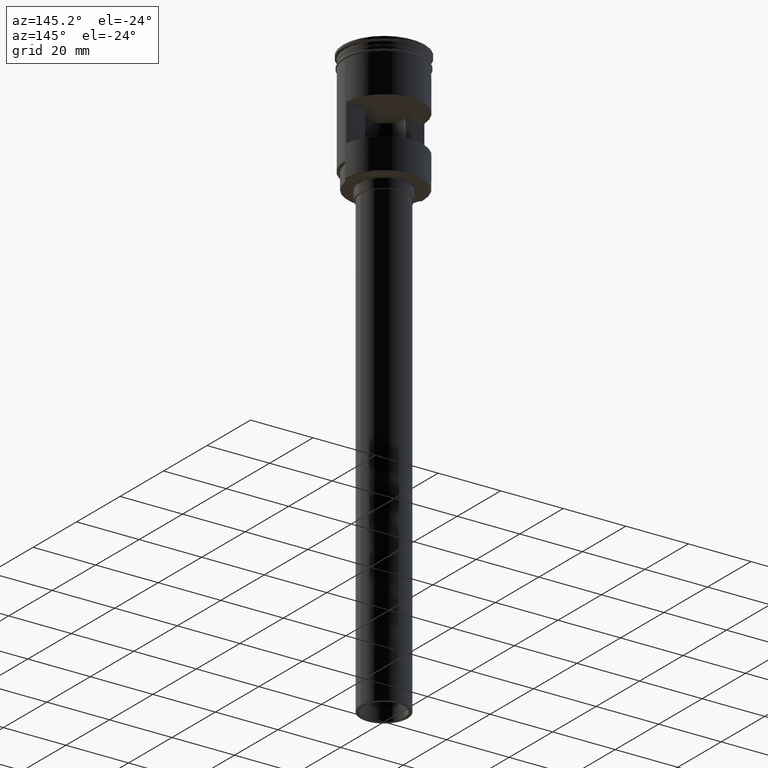
[diagram: clean part render]
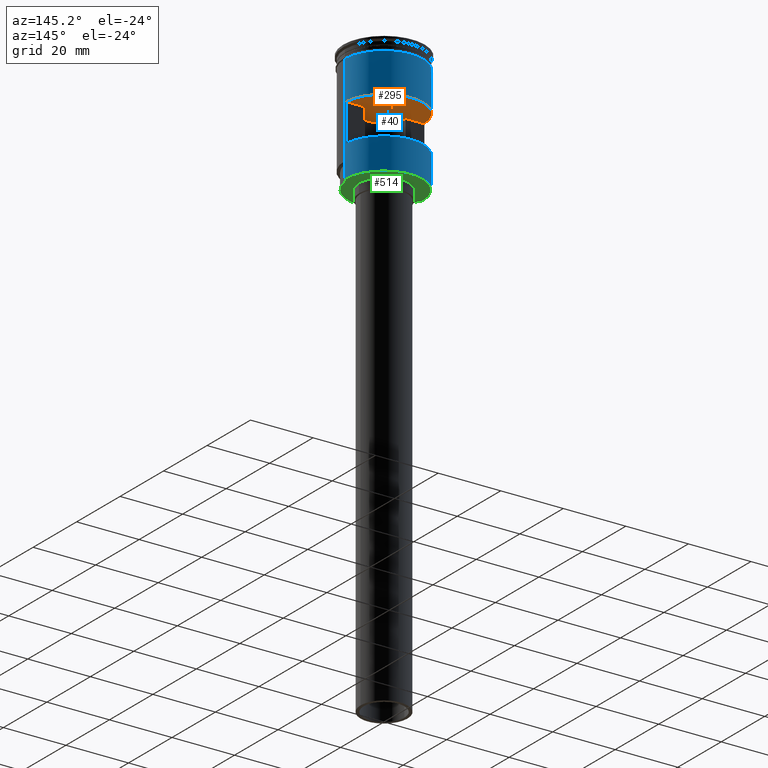
[diagram: same view with three faces highlighted in distinct colors, each labeled with its STEP entity id]
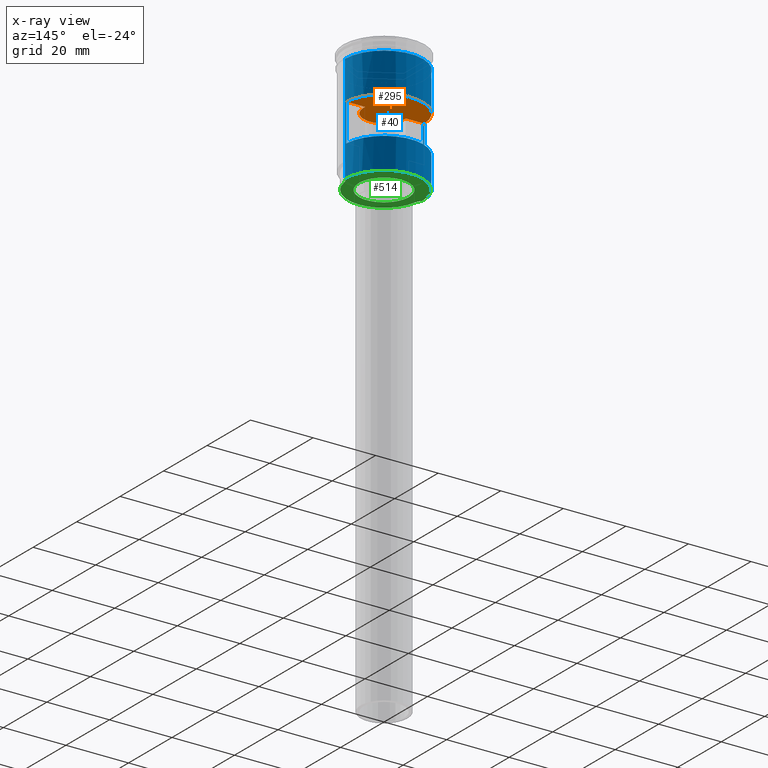
[diagram: x-ray of the same camera — body ghosted, the three highlighted faces saturated]
A machine part, auxiliary view with three faces highlighted in distinct colors.
The next image is the same camera in x-ray (body ghosted, the three faces saturated) — at least one of them is partly hidden behind the body in this view.
Their STEP definitions:

[orange] entity #295 — the highlighted planar face has unit normal (0, -0, 1).
#2 = DIRECTION ( 'NONE',  ( 1.000000000000000000, 0.000000000000000000, 0.000000000000000000 ) ) ;
#10 = DIRECTION ( 'NONE',  ( -0.000000000000000000, 0.000000000000000000, -1.000000000000000000 ) ) ;
#38 = DIRECTION ( 'NONE',  ( -0.000000000000000000, 0.000000000000000000, -1.000000000000000000 ) ) ;
#92 = CIRCLE ( 'NONE', #276, 6.500000000000000888 ) ;
#118 = EDGE_CURVE ( 'NONE', #279, #185, #780, .T. ) ;
#134 = CARTESIAN_POINT ( 'NONE',  ( 12.48559169603106689, 0.6000000000000003109, -16.50000000000000000 ) ) ;
#153 = DIRECTION ( 'NONE',  ( 1.000000000000000000, 0.000000000000000000, 0.000000000000000000 ) ) ;
#164 = VECTOR ( 'NONE', #1352, 1000.000000000000000 ) ;
#185 = VERTEX_POINT ( 'NONE', #134 ) ;
#218 = ORIENTED_EDGE ( 'NONE', *, *, #1204, .T. ) ;
#223 = ORIENTED_EDGE ( 'NONE', *, *, #663, .T. ) ;
#238 = DIRECTION ( 'NONE',  ( 1.000000000000000000, -0.000000000000000000, -0.000000000000000000 ) ) ;
#261 = VERTEX_POINT ( 'NONE', #1232 ) ;
#276 = AXIS2_PLACEMENT_3D ( 'NONE', #732, #621, #849 ) ;
#279 = VERTEX_POINT ( 'NONE', #1461 ) ;
#291 = ORIENTED_EDGE ( 'NONE', *, *, #1318, .F. ) ;
#295 = ADVANCED_FACE ( 'NONE', ( #1592 ), #1255, .F. ) ;
#329 = CIRCLE ( 'NONE', #1258, 6.500000000000000888 ) ;
#344 = VERTEX_POINT ( 'NONE', #1223 ) ;
#351 = AXIS2_PLACEMENT_3D ( 'NONE', #673, #38, #153 ) ;
#361 = AXIS2_PLACEMENT_3D ( 'NONE', #708, #479, #966 ) ;
#362 = VECTOR ( 'NONE', #238, 1000.000000000000000 ) ;
#366 = CARTESIAN_POINT ( 'NONE',  ( -13.00000000000000178, 0.6000000000000003109, -16.50000000000000000 ) ) ;
#367 = LINE ( 'NONE', #1341, #362 ) ;
#378 = EDGE_CURVE ( 'NONE', #1127, #185, #772, .T. ) ;
#397 = CARTESIAN_POINT ( 'NONE',  ( -13.00000000000000178, 0.6000000000000003109, -16.50000000000000000 ) ) ;
#401 = DIRECTION ( 'NONE',  ( 1.000000000000000000, 0.000000000000000000, -0.000000000000000000 ) ) ;
#479 = DIRECTION ( 'NONE',  ( -0.000000000000000000, 0.000000000000000000, -1.000000000000000000 ) ) ;
#574 = ORIENTED_EDGE ( 'NONE', *, *, #738, .T. ) ;
#621 = DIRECTION ( 'NONE',  ( -0.000000000000000000, 0.000000000000000000, -1.000000000000000000 ) ) ;
#663 = EDGE_CURVE ( 'NONE', #279, #261, #92, .T. ) ;
#673 = CARTESIAN_POINT ( 'NONE',  ( 0.000000000000000000, 0.000000000000000000, -16.50000000000000000 ) ) ;
#708 = CARTESIAN_POINT ( 'NONE',  ( 0.000000000000000000, 0.000000000000000000, -16.50000000000000000 ) ) ;
#732 = CARTESIAN_POINT ( 'NONE',  ( 0.000000000000000000, 0.000000000000000000, -16.50000000000000000 ) ) ;
#733 = CARTESIAN_POINT ( 'NONE',  ( 0.000000000000000000, 0.000000000000000000, -16.50000000000000000 ) ) ;
#734 = DIRECTION ( 'NONE',  ( 0.000000000000000000, -0.000000000000000000, 1.000000000000000000 ) ) ;
#738 = EDGE_CURVE ( 'NONE', #344, #1064, #329, .T. ) ;
#772 = CIRCLE ( 'NONE', #351, 12.49999999999999645 ) ;
#780 = LINE ( 'NONE', #397, #164 ) ;
#849 = DIRECTION ( 'NONE',  ( 1.000000000000000000, 0.000000000000000000, 0.000000000000000000 ) ) ;
#945 = AXIS2_PLACEMENT_3D ( 'NONE', #366, #734, #401 ) ;
#966 = DIRECTION ( 'NONE',  ( 1.000000000000000000, 0.000000000000000000, 0.000000000000000000 ) ) ;
#1050 = CIRCLE ( 'NONE', #361, 6.500000000000000888 ) ;
#1064 = VERTEX_POINT ( 'NONE', #1549 ) ;
#1127 = VERTEX_POINT ( 'NONE', #1321 ) ;
#1204 = EDGE_CURVE ( 'NONE', #261, #344, #1050, .T. ) ;
#1223 = CARTESIAN_POINT ( 'NONE',  ( -6.500000000000000888, 0.000000000000000000, -16.50000000000000000 ) ) ;
#1232 = CARTESIAN_POINT ( 'NONE',  ( 6.500000000000000888, 7.960204194457794491E-16, -16.50000000000000000 ) ) ;
#1255 = PLANE ( 'NONE',  #945 ) ;
#1258 = AXIS2_PLACEMENT_3D ( 'NONE', #733, #10, #2 ) ;
#1269 = ORIENTED_EDGE ( 'NONE', *, *, #378, .T. ) ;
#1300 = EDGE_LOOP ( 'NONE', ( #1348, #223, #218, #574, #291, #1269 ) ) ;
#1318 = EDGE_CURVE ( 'NONE', #1127, #1064, #367, .T. ) ;
#1321 = CARTESIAN_POINT ( 'NONE',  ( -12.48559169603106689, 0.6000000000000003109, -16.50000000000000000 ) ) ;
#1341 = CARTESIAN_POINT ( 'NONE',  ( -13.00000000000000178, 0.6000000000000003109, -16.50000000000000000 ) ) ;
#1348 = ORIENTED_EDGE ( 'NONE', *, *, #118, .F. ) ;
#1352 = DIRECTION ( 'NONE',  ( 1.000000000000000000, -0.000000000000000000, -0.000000000000000000 ) ) ;
#1461 = CARTESIAN_POINT ( 'NONE',  ( 6.472248450113761820, 0.6000000000000003109, -16.50000000000000000 ) ) ;
#1549 = CARTESIAN_POINT ( 'NONE',  ( -6.472248450113763596, 0.6000000000000004219, -16.50000000000000000 ) ) ;
#1592 = FACE_OUTER_BOUND ( 'NONE', #1300, .T. ) ;

[blue] entity #40 — the highlighted cylindrical surface (partial cylindrical patch) has radius 12.5 mm, axis along (-0, -0, 1).
#3 = LINE ( 'NONE', #271, #749 ) ;
#14 = VECTOR ( 'NONE', #459, 1000.000000000000000 ) ;
#23 = LINE ( 'NONE', #616, #1073 ) ;
#34 = FACE_BOUND ( 'NONE', #1246, .T. ) ;
#38 = DIRECTION ( 'NONE',  ( -0.000000000000000000, 0.000000000000000000, -1.000000000000000000 ) ) ;
#40 = ADVANCED_FACE ( 'NONE', ( #34, #1036 ), #1023, .T. ) ;
#62 = VECTOR ( 'NONE', #1538, 1000.000000000000000 ) ;
#78 = ORIENTED_EDGE ( 'NONE', *, *, #1471, .T. ) ;
#87 = DIRECTION ( 'NONE',  ( -1.000000000000000000, 0.000000000000000000, 0.000000000000000000 ) ) ;
#103 = CARTESIAN_POINT ( 'NONE',  ( 12.49999999999999645, 0.000000000000000000, 0.000000000000000000 ) ) ;
#134 = CARTESIAN_POINT ( 'NONE',  ( 12.48559169603106689, 0.6000000000000003109, -16.50000000000000000 ) ) ;
#153 = DIRECTION ( 'NONE',  ( 1.000000000000000000, 0.000000000000000000, 0.000000000000000000 ) ) ;
#184 = CARTESIAN_POINT ( 'NONE',  ( -12.49999999999999645, 1.530808498934191127E-15, 0.000000000000000000 ) ) ;
#185 = VERTEX_POINT ( 'NONE', #134 ) ;
#188 = CARTESIAN_POINT ( 'NONE',  ( 12.49999999999999289, 1.530808498934190732E-15, -38.29999999999996874 ) ) ;
#202 = CARTESIAN_POINT ( 'NONE',  ( 12.49999999999999289, 1.530808498934190732E-15, -38.50000000000000000 ) ) ;
#229 = EDGE_CURVE ( 'NONE', #932, #1127, #23, .T. ) ;
#233 = ORIENTED_EDGE ( 'NONE', *, *, #1309, .F. ) ;
#255 = CIRCLE ( 'NONE', #1049, 12.49999999999999645 ) ;
#271 = CARTESIAN_POINT ( 'NONE',  ( 12.48559169603106689, 0.6000000000000003109, 0.000000000000000000 ) ) ;
#317 = EDGE_CURVE ( 'NONE', #185, #1526, #3, .T. ) ;
#351 = AXIS2_PLACEMENT_3D ( 'NONE', #673, #38, #153 ) ;
#352 = CARTESIAN_POINT ( 'NONE',  ( 0.000000000000000000, 0.000000000000000000, -38.29999999999996874 ) ) ;
#378 = EDGE_CURVE ( 'NONE', #1127, #185, #772, .T. ) ;
#399 = ORIENTED_EDGE ( 'NONE', *, *, #1422, .F. ) ;
#412 = VECTOR ( 'NONE', #579, 1000.000000000000000 ) ;
#459 = DIRECTION ( 'NONE',  ( -0.000000000000000000, -0.000000000000000000, 1.000000000000000000 ) ) ;
#469 = ORIENTED_EDGE ( 'NONE', *, *, #715, .T. ) ;
#474 = VERTEX_POINT ( 'NONE', #898 ) ;
#485 = DIRECTION ( 'NONE',  ( -0.000000000000000000, -0.000000000000000000, 1.000000000000000000 ) ) ;
#488 = CARTESIAN_POINT ( 'NONE',  ( 0.000000000000000000, 0.000000000000000000, -3.999999999999996447 ) ) ;
#501 = ORIENTED_EDGE ( 'NONE', *, *, #229, .F. ) ;
#579 = DIRECTION ( 'NONE',  ( -0.000000000000000000, -0.000000000000000000, 1.000000000000000000 ) ) ;
#590 = VECTOR ( 'NONE', #485, 1000.000000000000000 ) ;
#616 = CARTESIAN_POINT ( 'NONE',  ( -12.48559169603106689, 0.6000000000000003109, 0.000000000000000000 ) ) ;
#622 = EDGE_CURVE ( 'NONE', #1080, #474, #255, .T. ) ;
#667 = CIRCLE ( 'NONE', #1562, 12.49999999999999645 ) ;
#673 = CARTESIAN_POINT ( 'NONE',  ( 0.000000000000000000, 0.000000000000000000, -16.50000000000000000 ) ) ;
#710 = VERTEX_POINT ( 'NONE', #983 ) ;
#715 = EDGE_CURVE ( 'NONE', #474, #710, #1213, .T. ) ;
#749 = VECTOR ( 'NONE', #1126, 1000.000000000000000 ) ;
#772 = CIRCLE ( 'NONE', #351, 12.49999999999999645 ) ;
#786 = DIRECTION ( 'NONE',  ( 1.000000000000000000, 0.000000000000000000, 0.000000000000000000 ) ) ;
#787 = VERTEX_POINT ( 'NONE', #1365 ) ;
#791 = CARTESIAN_POINT ( 'NONE',  ( -12.48559169603106689, 0.6000000000000003109, -28.49999999999999645 ) ) ;
#807 = DIRECTION ( 'NONE',  ( -1.000000000000000000, 0.000000000000000000, 0.000000000000000000 ) ) ;
#829 = ORIENTED_EDGE ( 'NONE', *, *, #1195, .F. ) ;
#834 = ORIENTED_EDGE ( 'NONE', *, *, #1154, .F. ) ;
#838 = CARTESIAN_POINT ( 'NONE',  ( 12.48559169603106689, 0.6000000000000003109, -28.49999999999999645 ) ) ;
#874 = CIRCLE ( 'NONE', #953, 12.49999999999999822 ) ;
#898 = CARTESIAN_POINT ( 'NONE',  ( -12.49999999999999289, 0.000000000000000000, -38.29999999999996874 ) ) ;
#904 = CARTESIAN_POINT ( 'NONE',  ( 0.000000000000000000, 0.000000000000000000, 0.000000000000000000 ) ) ;
#932 = VERTEX_POINT ( 'NONE', #791 ) ;
#953 = AXIS2_PLACEMENT_3D ( 'NONE', #488, #978, #1463 ) ;
#978 = DIRECTION ( 'NONE',  ( -0.000000000000000000, -0.000000000000000000, 1.000000000000000000 ) ) ;
#983 = CARTESIAN_POINT ( 'NONE',  ( -12.49999999999999289, 0.000000000000000000, -33.29999999999998295 ) ) ;
#988 = DIRECTION ( 'NONE',  ( -0.000000000000000000, -0.000000000000000000, 1.000000000000000000 ) ) ;
#1023 = CYLINDRICAL_SURFACE ( 'NONE', #1377, 12.49999999999999645 ) ;
#1036 = FACE_OUTER_BOUND ( 'NONE', #1416, .T. ) ;
#1049 = AXIS2_PLACEMENT_3D ( 'NONE', #352, #1413, #807 ) ;
#1068 = LINE ( 'NONE', #103, #412 ) ;
#1073 = VECTOR ( 'NONE', #988, 1000.000000000000000 ) ;
#1080 = VERTEX_POINT ( 'NONE', #188 ) ;
#1090 = CARTESIAN_POINT ( 'NONE',  ( -12.49999999999999289, 0.000000000000000000, -38.50000000000000000 ) ) ;
#1126 = DIRECTION ( 'NONE',  ( 0.000000000000000000, 0.000000000000000000, -1.000000000000000000 ) ) ;
#1127 = VERTEX_POINT ( 'NONE', #1321 ) ;
#1154 = EDGE_CURVE ( 'NONE', #1080, #1218, #1306, .T. ) ;
#1194 = ORIENTED_EDGE ( 'NONE', *, *, #622, .T. ) ;
#1195 = EDGE_CURVE ( 'NONE', #1218, #787, #1068, .T. ) ;
#1198 = DIRECTION ( 'NONE',  ( 0.000000000000000000, 0.000000000000000000, 1.000000000000000000 ) ) ;
#1213 = LINE ( 'NONE', #1090, #590 ) ;
#1216 = CARTESIAN_POINT ( 'NONE',  ( 12.49999999999999645, 1.530808498934191127E-15, -33.29999999999998295 ) ) ;
#1218 = VERTEX_POINT ( 'NONE', #1216 ) ;
#1246 = EDGE_LOOP ( 'NONE', ( #1359, #1344, #501, #399 ) ) ;
#1290 = LINE ( 'NONE', #184, #62 ) ;
#1306 = LINE ( 'NONE', #202, #14 ) ;
#1309 = EDGE_CURVE ( 'NONE', #787, #1332, #874, .T. ) ;
#1321 = CARTESIAN_POINT ( 'NONE',  ( -12.48559169603106689, 0.6000000000000003109, -16.50000000000000000 ) ) ;
#1332 = VERTEX_POINT ( 'NONE', #1423 ) ;
#1344 = ORIENTED_EDGE ( 'NONE', *, *, #378, .F. ) ;
#1359 = ORIENTED_EDGE ( 'NONE', *, *, #317, .F. ) ;
#1365 = CARTESIAN_POINT ( 'NONE',  ( 12.49999999999999822, 0.000000000000000000, -3.999999999999996447 ) ) ;
#1377 = AXIS2_PLACEMENT_3D ( 'NONE', #904, #1398, #786 ) ;
#1398 = DIRECTION ( 'NONE',  ( -0.000000000000000000, -0.000000000000000000, 1.000000000000000000 ) ) ;
#1413 = DIRECTION ( 'NONE',  ( 0.000000000000000000, 0.000000000000000000, 1.000000000000000000 ) ) ;
#1416 = EDGE_LOOP ( 'NONE', ( #469, #78, #233, #829, #834, #1194 ) ) ;
#1422 = EDGE_CURVE ( 'NONE', #1526, #932, #667, .T. ) ;
#1423 = CARTESIAN_POINT ( 'NONE',  ( -12.50000000000000000, 1.530808498934191521E-15, -3.999999999999996447 ) ) ;
#1435 = CARTESIAN_POINT ( 'NONE',  ( 0.000000000000000000, 0.000000000000000000, -28.49999999999999645 ) ) ;
#1463 = DIRECTION ( 'NONE',  ( 1.000000000000000000, 0.000000000000000000, 0.000000000000000000 ) ) ;
#1471 = EDGE_CURVE ( 'NONE', #710, #1332, #1290, .T. ) ;
#1526 = VERTEX_POINT ( 'NONE', #838 ) ;
#1538 = DIRECTION ( 'NONE',  ( -0.000000000000000000, -0.000000000000000000, 1.000000000000000000 ) ) ;
#1562 = AXIS2_PLACEMENT_3D ( 'NONE', #1435, #1198, #87 ) ;

[green] entity #514 — the highlighted planar face has unit normal (0, 0, -1).
#12 = ORIENTED_EDGE ( 'NONE', *, *, #1489, .F. ) ;
#17 = EDGE_CURVE ( 'NONE', #1546, #1447, #972, .T. ) ;
#19 = CARTESIAN_POINT ( 'NONE',  ( 0.000000000000000000, 0.000000000000000000, -38.50000000000000000 ) ) ;
#31 = CARTESIAN_POINT ( 'NONE',  ( -7.179049999999997489, -1.177652791573134738, -38.50000000000000000 ) ) ;
#68 = CARTESIAN_POINT ( 'NONE',  ( 0.000000000000000000, 0.000000000000000000, -38.50000000000000000 ) ) ;
#114 = CARTESIAN_POINT ( 'NONE',  ( -12.29999999999997762, 1.518562030942716389E-15, -38.50000000000000000 ) ) ;
#115 = VERTEX_POINT ( 'NONE', #880 ) ;
#121 = AXIS2_PLACEMENT_3D ( 'NONE', #480, #1479, #728 ) ;
#132 = ORIENTED_EDGE ( 'NONE', *, *, #753, .T. ) ;
#137 = DIRECTION ( 'NONE',  ( -1.000000000000000000, 0.000000000000000000, 0.000000000000000000 ) ) ;
#143 = ORIENTED_EDGE ( 'NONE', *, *, #450, .F. ) ;
#157 = FACE_OUTER_BOUND ( 'NONE', #824, .T. ) ;
#158 = DIRECTION ( 'NONE',  ( -1.000000000000000000, 0.000000000000000000, 0.000000000000000000 ) ) ;
#159 = CIRCLE ( 'NONE', #1019, 8.000000000000000000 ) ;
#211 = DIRECTION ( 'NONE',  ( 0.000000000000000000, 0.000000000000000000, -1.000000000000000000 ) ) ;
#217 = CARTESIAN_POINT ( 'NONE',  ( -8.000000000000000000, 9.797174393178825657E-16, -38.50000000000000000 ) ) ;
#267 = VERTEX_POINT ( 'NONE', #865 ) ;
#287 = CARTESIAN_POINT ( 'NONE',  ( 0.000000000000000000, 0.000000000000000000, -38.50000000000000000 ) ) ;
#290 = DIRECTION ( 'NONE',  ( 0.000000000000000000, 0.000000000000000000, -1.000000000000000000 ) ) ;
#310 = CARTESIAN_POINT ( 'NONE',  ( 14.35809999999999498, -2.355305583146269477, -38.50000000000000000 ) ) ;
#322 = ORIENTED_EDGE ( 'NONE', *, *, #429, .F. ) ;
#426 = DIRECTION ( 'NONE',  ( 0.000000000000000000, 0.000000000000000000, -1.000000000000000000 ) ) ;
#429 = EDGE_CURVE ( 'NONE', #115, #1136, #159, .T. ) ;
#438 = CIRCLE ( 'NONE', #754, 2.999999999999999112 ) ;
#450 = EDGE_CURVE ( 'NONE', #1546, #638, #554, .T. ) ;
#468 = AXIS2_PLACEMENT_3D ( 'NONE', #1114, #1472, #1571 ) ;
#480 = CARTESIAN_POINT ( 'NONE',  ( 0.000000000000000000, 0.000000000000000000, -38.50000000000000000 ) ) ;
#483 = ORIENTED_EDGE ( 'NONE', *, *, #1387, .F. ) ;
#514 = ADVANCED_FACE ( 'NONE', ( #1268, #157 ), #1145, .T. ) ;
#530 = CARTESIAN_POINT ( 'NONE',  ( 0.000000000000000000, 0.000000000000000000, -38.50000000000000000 ) ) ;
#554 = CIRCLE ( 'NONE', #1226, 2.999999999999997335 ) ;
#571 = DIRECTION ( 'NONE',  ( 0.000000000000000000, 0.000000000000000000, -1.000000000000000000 ) ) ;
#573 = DIRECTION ( 'NONE',  ( 0.000000000000000000, 0.000000000000000000, -1.000000000000000000 ) ) ;
#582 = CARTESIAN_POINT ( 'NONE',  ( 11.39766701030927543, -1.869675566002708900, -38.50000000000000000 ) ) ;
#638 = VERTEX_POINT ( 'NONE', #714 ) ;
#700 = DIRECTION ( 'NONE',  ( -1.000000000000000000, 0.000000000000000000, 0.000000000000000000 ) ) ;
#714 = CARTESIAN_POINT ( 'NONE',  ( 12.29877269673719198, -0.1737531409537070581, -38.50000000000000000 ) ) ;
#717 = CIRCLE ( 'NONE', #1235, 12.29999999999997762 ) ;
#724 = ORIENTED_EDGE ( 'NONE', *, *, #1259, .T. ) ;
#728 = DIRECTION ( 'NONE',  ( -1.000000000000000000, 0.000000000000000000, 0.000000000000000000 ) ) ;
#753 = EDGE_CURVE ( 'NONE', #1247, #267, #717, .T. ) ;
#754 = AXIS2_PLACEMENT_3D ( 'NONE', #810, #211, #700 ) ;
#810 = CARTESIAN_POINT ( 'NONE',  ( -14.35809999999999498, -2.355305583146269477, -38.50000000000000000 ) ) ;
#817 = CIRCLE ( 'NONE', #121, 12.29999999999997762 ) ;
#824 = EDGE_LOOP ( 'NONE', ( #483, #1555, #132, #724, #143, #1173 ) ) ;
#865 = CARTESIAN_POINT ( 'NONE',  ( 12.29999999999997762, 0.000000000000000000, -38.50000000000000000 ) ) ;
#880 = CARTESIAN_POINT ( 'NONE',  ( 8.000000000000000000, 0.000000000000000000, -38.50000000000000000 ) ) ;
#896 = CIRCLE ( 'NONE', #468, 12.29999999999997762 ) ;
#909 = DIRECTION ( 'NONE',  ( -1.000000000000000000, 0.000000000000000000, 0.000000000000000000 ) ) ;
#960 = CARTESIAN_POINT ( 'NONE',  ( -11.39766701030927543, -1.869675566002713563, -38.50000000000000000 ) ) ;
#972 = CIRCLE ( 'NONE', #1373, 11.54999999999999716 ) ;
#989 = VERTEX_POINT ( 'NONE', #1406 ) ;
#1019 = AXIS2_PLACEMENT_3D ( 'NONE', #530, #290, #1034 ) ;
#1027 = CIRCLE ( 'NONE', #1240, 8.000000000000000000 ) ;
#1034 = DIRECTION ( 'NONE',  ( -1.000000000000000000, 0.000000000000000000, 0.000000000000000000 ) ) ;
#1094 = DIRECTION ( 'NONE',  ( -1.000000000000000000, 0.000000000000000000, 0.000000000000000000 ) ) ;
#1114 = CARTESIAN_POINT ( 'NONE',  ( 0.000000000000000000, 0.000000000000000000, -38.50000000000000000 ) ) ;
#1136 = VERTEX_POINT ( 'NONE', #217 ) ;
#1145 = PLANE ( 'NONE',  #1351 ) ;
#1164 = DIRECTION ( 'NONE',  ( 0.000000000000000000, 0.000000000000000000, -1.000000000000000000 ) ) ;
#1173 = ORIENTED_EDGE ( 'NONE', *, *, #17, .T. ) ;
#1226 = AXIS2_PLACEMENT_3D ( 'NONE', #310, #426, #909 ) ;
#1228 = EDGE_CURVE ( 'NONE', #989, #1247, #817, .T. ) ;
#1235 = AXIS2_PLACEMENT_3D ( 'NONE', #19, #1346, #137 ) ;
#1240 = AXIS2_PLACEMENT_3D ( 'NONE', #68, #573, #1094 ) ;
#1247 = VERTEX_POINT ( 'NONE', #114 ) ;
#1259 = EDGE_CURVE ( 'NONE', #267, #638, #896, .T. ) ;
#1268 = FACE_BOUND ( 'NONE', #1395, .T. ) ;
#1346 = DIRECTION ( 'NONE',  ( 0.000000000000000000, 0.000000000000000000, -1.000000000000000000 ) ) ;
#1351 = AXIS2_PLACEMENT_3D ( 'NONE', #31, #571, #1440 ) ;
#1373 = AXIS2_PLACEMENT_3D ( 'NONE', #287, #1164, #158 ) ;
#1387 = EDGE_CURVE ( 'NONE', #989, #1447, #438, .T. ) ;
#1395 = EDGE_LOOP ( 'NONE', ( #322, #12 ) ) ;
#1406 = CARTESIAN_POINT ( 'NONE',  ( -12.29877269673719198, -0.1737531409537070581, -38.50000000000000000 ) ) ;
#1440 = DIRECTION ( 'NONE',  ( -1.000000000000000000, 0.000000000000000000, -0.000000000000000000 ) ) ;
#1447 = VERTEX_POINT ( 'NONE', #960 ) ;
#1472 = DIRECTION ( 'NONE',  ( 0.000000000000000000, 0.000000000000000000, -1.000000000000000000 ) ) ;
#1479 = DIRECTION ( 'NONE',  ( 0.000000000000000000, 0.000000000000000000, -1.000000000000000000 ) ) ;
#1489 = EDGE_CURVE ( 'NONE', #1136, #115, #1027, .T. ) ;
#1546 = VERTEX_POINT ( 'NONE', #582 ) ;
#1555 = ORIENTED_EDGE ( 'NONE', *, *, #1228, .T. ) ;
#1571 = DIRECTION ( 'NONE',  ( -1.000000000000000000, 0.000000000000000000, 0.000000000000000000 ) ) ;